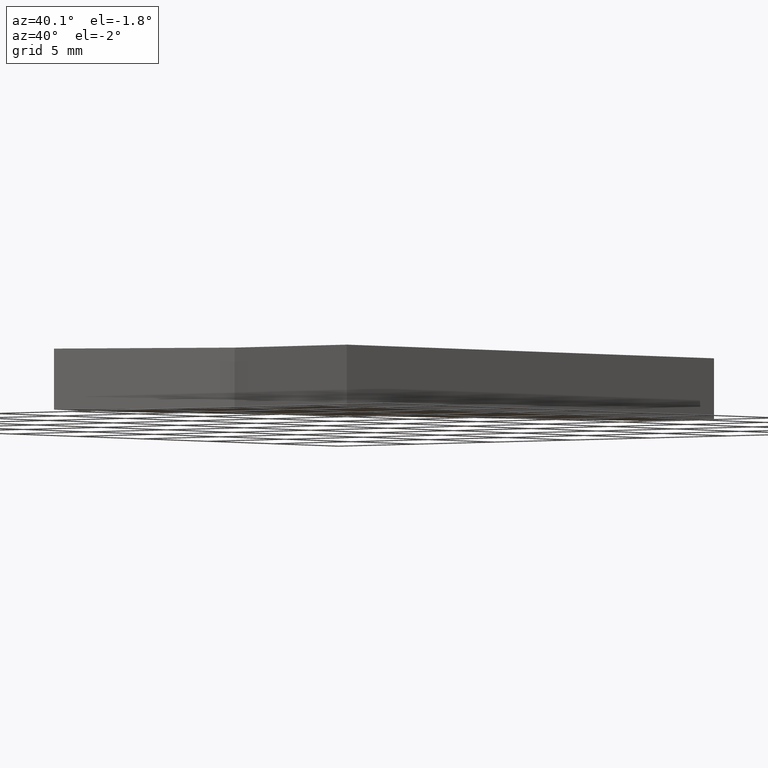
[diagram: clean part render]
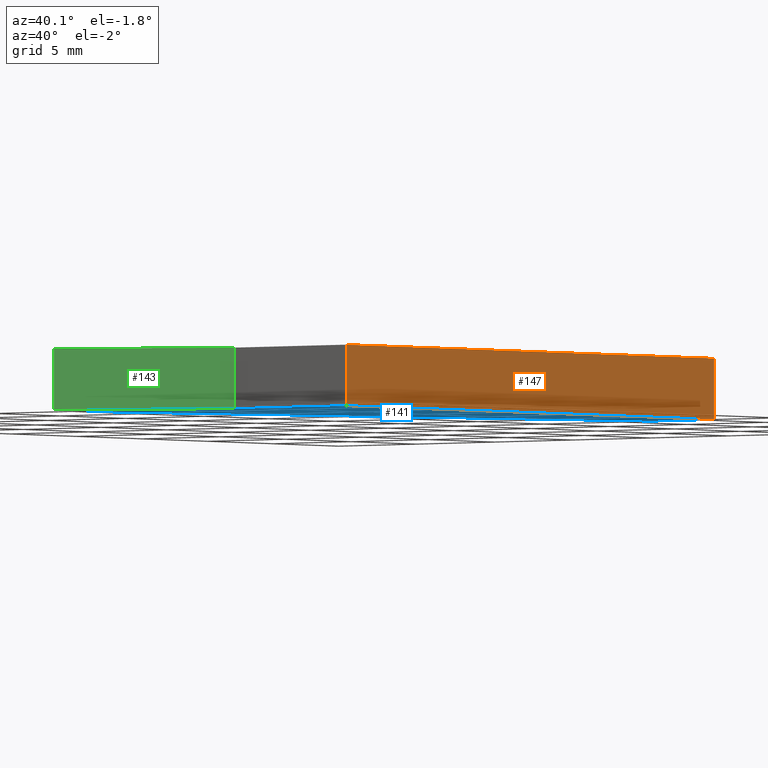
[diagram: same view with three faces highlighted in distinct colors, each labeled with its STEP entity id]
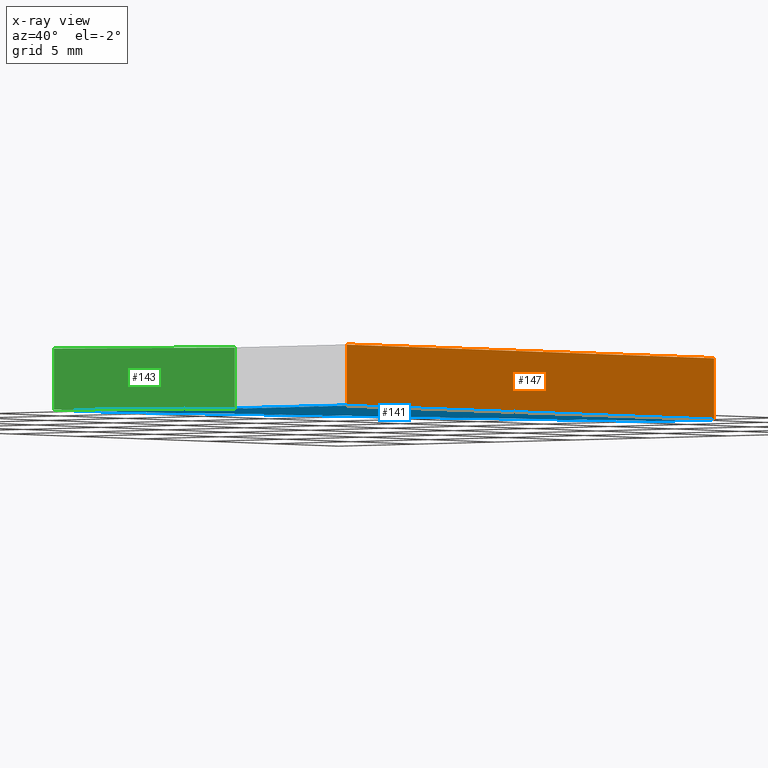
[diagram: x-ray of the same camera — body ghosted, the three highlighted faces saturated]
A machine part, auxiliary view with three faces highlighted in distinct colors.
The next image is the same camera in x-ray (body ghosted, the three faces saturated) — at least one of them is partly hidden behind the body in this view.
Their STEP definitions:

[orange] entity #147 — the highlighted planar face has unit normal (1, 0, 0).
#21=FACE_OUTER_BOUND('',#29,.T.);
#29=EDGE_LOOP('',(#123,#124,#125,#126));
#32=LINE('',#222,#50);
#39=LINE('',#235,#57);
#47=LINE('',#251,#65);
#48=LINE('',#253,#66);
#50=VECTOR('',#185,10.);
#57=VECTOR('',#194,10.);
#65=VECTOR('',#210,10.);
#66=VECTOR('',#213,10.);
#67=VERTEX_POINT('',#218);
#69=VERTEX_POINT('',#221);
#73=VERTEX_POINT('',#231);
#78=VERTEX_POINT('',#249);
#80=EDGE_CURVE('',#69,#67,#32,.T.);
#87=EDGE_CURVE('',#73,#69,#39,.T.);
#95=EDGE_CURVE('',#67,#78,#47,.T.);
#96=EDGE_CURVE('',#78,#73,#48,.T.);
#123=ORIENTED_EDGE('',*,*,#96,.T.);
#124=ORIENTED_EDGE('',*,*,#87,.T.);
#125=ORIENTED_EDGE('',*,*,#80,.T.);
#126=ORIENTED_EDGE('',*,*,#95,.T.);
#139=PLANE('',#178);
#147=ADVANCED_FACE('',(#21),#139,.T.);
#178=AXIS2_PLACEMENT_3D('',#252,#211,#212);
#185=DIRECTION('',(-6.93971975526328E-17,1.,0.));
#194=DIRECTION('',(0.,0.,-1.));
#210=DIRECTION('',(0.,0.,1.));
#211=DIRECTION('center_axis',(1.,6.93971975526328E-17,0.));
#212=DIRECTION('ref_axis',(0.,0.,-1.));
#213=DIRECTION('',(6.93971975526328E-17,-1.,0.));
#218=CARTESIAN_POINT('',(-8.32667268468867E-16,27.9966679003209,-1.5));
#221=CARTESIAN_POINT('',(1.11022302462516E-15,1.11022302462516E-15,-1.5));
#222=CARTESIAN_POINT('',(-8.32667268468867E-16,27.9966679003209,-1.5));
#231=CARTESIAN_POINT('',(1.11022302462516E-15,1.11022302462516E-15,1.5));
#235=CARTESIAN_POINT('',(1.11022302462516E-15,1.11022302462516E-15,0.));
#249=CARTESIAN_POINT('',(-8.32667268468867E-16,27.9966679003209,1.5));
#251=CARTESIAN_POINT('',(-8.32667268468867E-16,27.9966679003209,0.));
#252=CARTESIAN_POINT('Origin',(-8.32667268468867E-16,27.9966679003209,0.));
#253=CARTESIAN_POINT('',(-8.32667268468867E-16,27.9966679003209,1.5));

[blue] entity #141 — the highlighted planar face has unit normal (0, 0, 1).
#15=FACE_OUTER_BOUND('',#23,.T.);
#23=EDGE_LOOP('',(#97,#98,#99,#100,#101,#102));
#31=LINE('',#220,#49);
#32=LINE('',#222,#50);
#33=LINE('',#224,#51);
#34=LINE('',#226,#52);
#35=LINE('',#228,#53);
#36=LINE('',#229,#54);
#49=VECTOR('',#184,10.);
#50=VECTOR('',#185,10.);
#51=VECTOR('',#186,10.);
#52=VECTOR('',#187,10.);
#53=VECTOR('',#188,10.);
#54=VECTOR('',#189,10.);
#67=VERTEX_POINT('',#218);
#68=VERTEX_POINT('',#219);
#69=VERTEX_POINT('',#221);
#70=VERTEX_POINT('',#223);
#71=VERTEX_POINT('',#225);
#72=VERTEX_POINT('',#227);
#79=EDGE_CURVE('',#67,#68,#31,.T.);
#80=EDGE_CURVE('',#69,#67,#32,.T.);
#81=EDGE_CURVE('',#70,#69,#33,.T.);
#82=EDGE_CURVE('',#71,#70,#34,.T.);
#83=EDGE_CURVE('',#72,#71,#35,.T.);
#84=EDGE_CURVE('',#68,#72,#36,.T.);
#97=ORIENTED_EDGE('',*,*,#79,.F.);
#98=ORIENTED_EDGE('',*,*,#80,.F.);
#99=ORIENTED_EDGE('',*,*,#81,.F.);
#100=ORIENTED_EDGE('',*,*,#82,.F.);
#101=ORIENTED_EDGE('',*,*,#83,.F.);
#102=ORIENTED_EDGE('',*,*,#84,.F.);
#133=PLANE('',#172);
#141=ADVANCED_FACE('',(#15),#133,.F.);
#172=AXIS2_PLACEMENT_3D('',#217,#182,#183);
#182=DIRECTION('center_axis',(0.,0.,1.));
#183=DIRECTION('ref_axis',(1.,0.,0.));
#184=DIRECTION('',(-1.,0.,0.));
#185=DIRECTION('',(-6.93971975526328E-17,1.,0.));
#186=DIRECTION('',(1.,1.54197642309049E-16,0.));
#187=DIRECTION('',(0.866025403784439,0.5,0.));
#188=DIRECTION('',(0.,-1.,0.));
#189=DIRECTION('',(-0.365689144775054,-0.930737046320651,0.));
#217=CARTESIAN_POINT('Origin',(-5.88464466881287,10.8051094182979,-1.5));
#218=CARTESIAN_POINT('',(-8.32667268468867E-16,27.9966679003209,-1.5));
#219=CARTESIAN_POINT('',(-3.99872300755724,27.9966679003209,-1.5));
#220=CARTESIAN_POINT('',(-3.99872300755724,27.9966679003209,-1.5));
#221=CARTESIAN_POINT('',(1.11022302462516E-15,1.11022302462516E-15,-1.5));
#222=CARTESIAN_POINT('',(-8.32667268468867E-16,27.9966679003209,-1.5));
#223=CARTESIAN_POINT('',(-7.2,0.,-1.5));
#224=CARTESIAN_POINT('',(1.11022302462516E-15,1.11022302462516E-15,-1.5));
#225=CARTESIAN_POINT('',(-15.,-4.50333209967908,-1.5));
#226=CARTESIAN_POINT('',(-7.2,0.,-1.5));
#227=CARTESIAN_POINT('',(-15.,-0.0033320996790781,-1.5));
#228=CARTESIAN_POINT('',(-15.,-4.50333209967908,-1.5));
#229=CARTESIAN_POINT('',(-15.,-0.0033320996790781,-1.5));

[green] entity #143 — the highlighted planar face has unit normal (0.5, -0.866, 0).
#17=FACE_OUTER_BOUND('',#25,.T.);
#25=EDGE_LOOP('',(#107,#108,#109,#110));
#34=LINE('',#226,#52);
#38=LINE('',#234,#56);
#40=LINE('',#238,#58);
#41=LINE('',#239,#59);
#52=VECTOR('',#187,10.);
#56=VECTOR('',#193,10.);
#58=VECTOR('',#197,10.);
#59=VECTOR('',#198,10.);
#70=VERTEX_POINT('',#223);
#71=VERTEX_POINT('',#225);
#74=VERTEX_POINT('',#232);
#75=VERTEX_POINT('',#237);
#82=EDGE_CURVE('',#71,#70,#34,.T.);
#86=EDGE_CURVE('',#74,#70,#38,.T.);
#88=EDGE_CURVE('',#74,#75,#40,.T.);
#89=EDGE_CURVE('',#75,#71,#41,.T.);
#107=ORIENTED_EDGE('',*,*,#88,.T.);
#108=ORIENTED_EDGE('',*,*,#89,.T.);
#109=ORIENTED_EDGE('',*,*,#82,.T.);
#110=ORIENTED_EDGE('',*,*,#86,.F.);
#135=PLANE('',#174);
#143=ADVANCED_FACE('',(#17),#135,.T.);
#174=AXIS2_PLACEMENT_3D('',#236,#195,#196);
#187=DIRECTION('',(0.866025403784439,0.5,0.));
#193=DIRECTION('',(0.,0.,-1.));
#195=DIRECTION('center_axis',(0.5,-0.866025403784439,0.));
#196=DIRECTION('ref_axis',(0.,0.,-1.));
#197=DIRECTION('',(-0.866025403784439,-0.5,0.));
#198=DIRECTION('',(0.,0.,-1.));
#223=CARTESIAN_POINT('',(-7.2,0.,-1.5));
#225=CARTESIAN_POINT('',(-15.,-4.50333209967908,-1.5));
#226=CARTESIAN_POINT('',(-7.2,0.,-1.5));
#232=CARTESIAN_POINT('',(-7.2,0.,1.5));
#234=CARTESIAN_POINT('',(-7.2,0.,0.));
#236=CARTESIAN_POINT('Origin',(-7.2,0.,0.));
#237=CARTESIAN_POINT('',(-15.,-4.50333209967908,1.5));
#238=CARTESIAN_POINT('',(-7.2,0.,1.5));
#239=CARTESIAN_POINT('',(-15.,-4.50333209967908,0.));